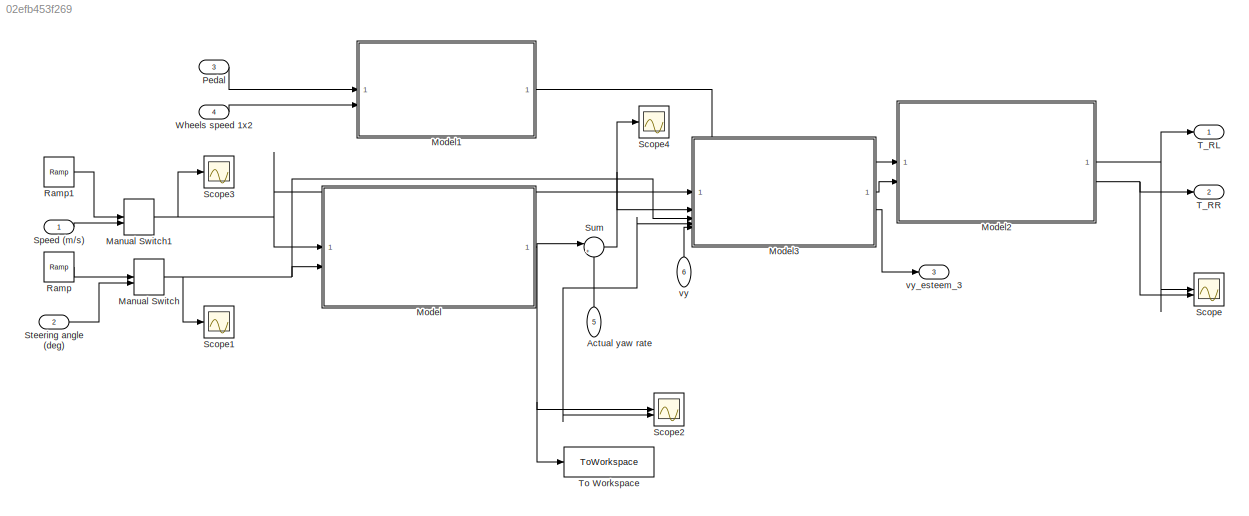
MODEL slx_02efb453f269
KIND model
CONFIG AbsTol = auto
CONFIG EnableMultiTasking = off
CONFIG FixedStep = auto
CONFIG MaxStep = 0.01
CONFIG MinStep = auto
CONFIG RelTol = 1e-3
CONFIG SampleTimeConstraint = Unconstrained
CONFIG SolverName = FixedStepAuto
CONFIG StartTime = 0.0
CONFIG StopTime = 10.0
BLOCK [Inport] Actual yaw rate
  NameLocation = right
  Port = 5
BLOCK [ManualSwitch] Manual Switch
  CurrentSetting = 0
BLOCK [ManualSwitch] Manual Switch1
  CurrentSetting = 0
BLOCK [ModelReference] Model
  ModelNameDialog = phi_ref.slx
  ModelReferenceVersion = 1.22
BLOCK [ModelReference] Model1
  ModelNameDialog = consigne_couple.slx
  ModelReferenceVersion = 1.13
BLOCK [ModelReference] Model2
  ModelNameDialog = alloc_couple.slx
  ModelReferenceVersion = 1.5
BLOCK [ModelReference] Model3
  ModelNameDialog = calcul_Mz_PID.slx
  ModelReferenceVersion = 1.25
BLOCK [Inport] Pedal
  Port = 3
BLOCK [Reference] Ramp  REF=simulink/Sources/Ramp
  SourceBlock = simulink/Sources/Ramp
  SourceType = Ramp
BLOCK [Reference] Ramp1  REF=simulink/Sources/Ramp
  SourceBlock = simulink/Sources/Ramp
  SourceType = Ramp
BLOCK [Scope] Scope
  Floating = off
  NumInputPorts = 2
  ScopeSpecificationString = Simulink.scopes.TimeScopeBlockCfg('CurrentConfiguration', extmgr.ConfigurationSet(extmgr.Configuration('Core','General UI',true),extmgr.Configuration('Core','Source UI',true),extmgr.Configuration('Sources','WiredSimulink',true,'DataLoggingVariableName','ScopeData1'),extmgr.Configuration('Visuals','Time Domain',true,'SerializedDisplays',{struct('MinYLimReal','-265228.96717','MaxYLimReal','265228.96...<+1551ch>
BLOCK [Scope] Scope1
  Floating = off
  NumInputPorts = 1
  ScopeSpecificationString = Simulink.scopes.TimeScopeBlockCfg('CurrentConfiguration', extmgr.ConfigurationSet(extmgr.Configuration('Core','General UI',true),extmgr.Configuration('Core','Source UI',true),extmgr.Configuration('Sources','WiredSimulink',true,'DataLoggingVariableName','ScopeData1'),extmgr.Configuration('Visuals','Time Domain',true,'SerializedDisplays',{struct('MinYLimReal','-12.5','MaxYLimReal','12.5','YLabelReal...<+1474ch>
BLOCK [Scope] Scope2
  Floating = off
  NumInputPorts = 2
  ScopeSpecificationString = Simulink.scopes.TimeScopeBlockCfg('CurrentConfiguration', extmgr.ConfigurationSet(extmgr.Configuration('Core','General UI',true),extmgr.Configuration('Core','Source UI',true),extmgr.Configuration('Sources','WiredSimulink',true,'DataLoggingVariableName','ScopeData2'),extmgr.Configuration('Visuals','Time Domain',true,'SerializedDisplays',{struct('MinYLimReal','-16.46483','MaxYLimReal','3.59604','YLa...<+1621ch>
BLOCK [Scope] Scope3
  Floating = off
  NumInputPorts = 1
  ScopeSpecificationString = Simulink.scopes.TimeScopeBlockCfg('CurrentConfiguration', extmgr.ConfigurationSet(extmgr.Configuration('Core','General UI',true),extmgr.Configuration('Core','Source UI',true),extmgr.Configuration('Sources','WiredSimulink',true,'DataLoggingVariableName','ScopeData1'),extmgr.Configuration('Visuals','Time Domain',true,'SerializedDisplays',{struct('MinYLimReal','-46.32978','MaxYLimReal','47.29427','YL...<+1619ch>
BLOCK [Scope] Scope4
  Floating = off
  NumInputPorts = 1
  ScopeSpecificationString = Simulink.scopes.TimeScopeBlockCfg('CurrentConfiguration', extmgr.ConfigurationSet(extmgr.Configuration('Core','General UI',true),extmgr.Configuration('Core','Source UI',true),extmgr.Configuration('Sources','WiredSimulink',true,'DataLoggingVariableName','ScopeData1'),extmgr.Configuration('Visuals','Time Domain',true,'SerializedDisplays',{struct('MinYLimReal','-0.60129','MaxYLimReal','0.62526','YLab...<+1480ch>
BLOCK [Inport] Speed (m//s)
BLOCK [Inport] Steering angle (deg)
  Port = 2
BLOCK [Sum] Sum
  Inputs = |+-
BLOCK [Outport] T_RL
BLOCK [Outport] T_RR
  Port = 2
BLOCK [ToWorkspace] To Workspace
  FixptAsFi = on
  MaxDataPoints = inf
  SampleTime = -1
  SaveFormat = Structure With Time
  VariableName = target_yaw
BLOCK [Inport] Wheels speed 1x2
  Port = 4
BLOCK [Inport] vy
  NameLocation = right
  Port = 6
BLOCK [Outport] vy_esteem_3
  Port = 3
NET Actual yaw rate:1 -> Model3:4, Scope2:2, Sum:2
NET Manual Switch1:1 -> Model3:1, Model:1, Scope3:1
NET Manual Switch:1 -> Model3:3, Model:2, Scope1:1
LINE Model1:1 -> Model2:1
NET Model2:1 -> Scope:1, T_RL:1
NET Model2:2 -> Scope:2, T_RR:1
LINE Model3:1 -> Model2:2
LINE Model3:2 -> vy_esteem_3:1
NET Model:1 -> Scope2:1, Sum:1, To Workspace:1
LINE Pedal:1 -> Model1:1
LINE Ramp1:1 -> Manual Switch1:1
LINE Ramp:1 -> Manual Switch:1
LINE Speed (m//s):1 -> Manual Switch1:2
LINE Steering angle (deg):1 -> Manual Switch:2
NET Sum:1 -> Model3:2, Scope4:1
LINE Wheels speed 1x2:1 -> Model1:2
LINE vy:1 -> Model3:5
note: NET lines group one-source signal fan-out (src -> all destinations, sorted); 1:1 wires keep LINE
